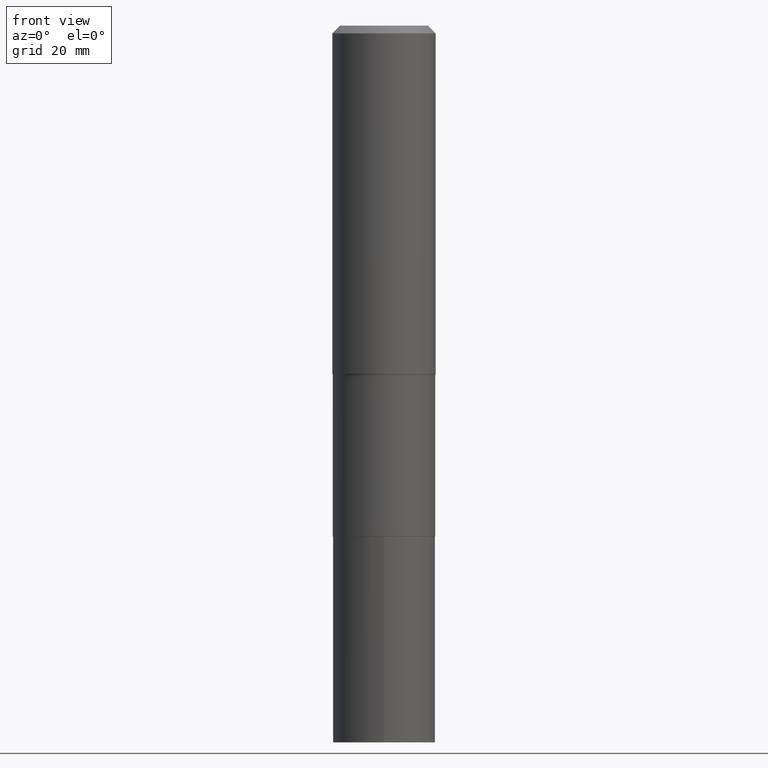
[diagram: clean part render]
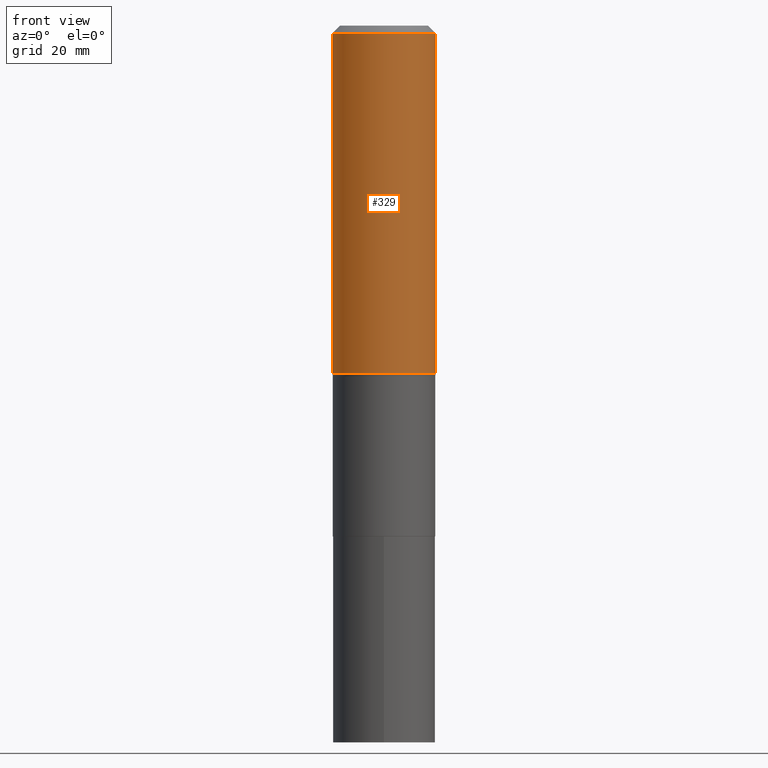
[diagram: same view with one face highlighted and labeled with its STEP entity id]
A machine part, front view. The second image highlights one B-rep face of the part: STEP entity #329.
In plain terms, the highlighted cylindrical surface (partial cylindrical patch) has radius 9.0005 mm, axis along (-0, 0, 1).
Its self-contained STEP definition (entity closure, byte-faithful):
#6 = AXIS2_PLACEMENT_3D ( 'NONE', #278, #455, #57 ) ;
#21 = CARTESIAN_POINT ( 'NONE',  ( 0.3543500000000002759, -1.081493330997731886E-14, -2.388820009532888644 ) ) ;
#54 = CARTESIAN_POINT ( 'NONE',  ( 0.3543500000000001648, -2.474412824838129483E-15, 1.727873240503290590E-29 ) ) ;
#57 = DIRECTION ( 'NONE',  ( 1.000000000000000000, -6.982962677686265922E-15, 0.000000000000000000 ) ) ;
#64 = DIRECTION ( 'NONE',  ( -2.445468806185136597E-29, 3.491481338843145583E-15, 1.000000000000000000 ) ) ;
#109 = EDGE_LOOP ( 'NONE', ( #465, #447, #191, #391 ) ) ;
#119 = CIRCLE ( 'NONE', #443, 0.3543499999999999983 ) ;
#136 = DIRECTION ( 'NONE',  ( 1.000000000000000000, -6.982962677686265922E-15, 4.876176775795935793E-29 ) ) ;
#148 = VERTEX_POINT ( 'NONE', #21 ) ;
#174 = VECTOR ( 'NONE', #381, 39.37007874015748143 ) ;
#179 = CYLINDRICAL_SURFACE ( 'NONE', #228, 0.3543500000000001648 ) ;
#183 = EDGE_CURVE ( 'NONE', #325, #148, #236, .T. ) ;
#187 = CARTESIAN_POINT ( 'NONE',  ( -0.3543499999999999983, -1.745242539335107473E-15, -0.05315250000000033143 ) ) ;
#191 = ORIENTED_EDGE ( 'NONE', *, *, #232, .T. ) ;
#228 = AXIS2_PLACEMENT_3D ( 'NONE', #284, #64, #136 ) ;
#232 = EDGE_CURVE ( 'NONE', #148, #389, #244, .T. ) ;
#236 = CIRCLE ( 'NONE', #6, 0.3543500000000002759 ) ;
#244 = LINE ( 'NONE', #54, #451 ) ;
#257 = EDGE_CURVE ( 'NONE', #466, #389, #119, .T. ) ;
#274 = DIRECTION ( 'NONE',  ( -2.445468806185136877E-29, 3.491481338843145188E-15, 1.000000000000000000 ) ) ;
#278 = CARTESIAN_POINT ( 'NONE',  ( 5.841784816903559502E-29, -8.340520485139185830E-15, -2.388820009532888644 ) ) ;
#279 = DIRECTION ( 'NONE',  ( 1.000000000000000000, -6.982962677686266711E-15, 0.000000000000000000 ) ) ;
#284 = CARTESIAN_POINT ( 'NONE',  ( 0.000000000000000000, 0.000000000000000000, 0.000000000000000000 ) ) ;
#303 = EDGE_CURVE ( 'NONE', #325, #466, #418, .T. ) ;
#305 = DIRECTION ( 'NONE',  ( -2.445468806185136597E-29, 3.491481338843145583E-15, 1.000000000000000000 ) ) ;
#325 = VERTEX_POINT ( 'NONE', #348 ) ;
#329 = ADVANCED_FACE ( 'NONE', ( #458 ), #179, .T. ) ;
#342 = CARTESIAN_POINT ( 'NONE',  ( -0.3543500000000001648, 2.517808184165916180E-15, -1.743024649231826627E-29 ) ) ;
#344 = CARTESIAN_POINT ( 'NONE',  ( 0.3543499999999999983, -2.659993786700990170E-15, -0.05315250000000033143 ) ) ;
#348 = CARTESIAN_POINT ( 'NONE',  ( -0.3543500000000002759, -5.822712300973268862E-15, -2.388820009532888644 ) ) ;
#379 = CARTESIAN_POINT ( 'NONE',  ( 1.299827807207562971E-30, -1.855809618628614763E-16, -0.05315250000000033143 ) ) ;
#381 = DIRECTION ( 'NONE',  ( -2.445468806185136877E-29, 3.491481338843145188E-15, 1.000000000000000000 ) ) ;
#389 = VERTEX_POINT ( 'NONE', #344 ) ;
#391 = ORIENTED_EDGE ( 'NONE', *, *, #257, .F. ) ;
#418 = LINE ( 'NONE', #342, #174 ) ;
#443 = AXIS2_PLACEMENT_3D ( 'NONE', #379, #305, #279 ) ;
#447 = ORIENTED_EDGE ( 'NONE', *, *, #183, .T. ) ;
#451 = VECTOR ( 'NONE', #274, 39.37007874015748143 ) ;
#455 = DIRECTION ( 'NONE',  ( -2.445468806185136597E-29, 3.491481338843145583E-15, 1.000000000000000000 ) ) ;
#458 = FACE_OUTER_BOUND ( 'NONE', #109, .T. ) ;
#465 = ORIENTED_EDGE ( 'NONE', *, *, #303, .F. ) ;
#466 = VERTEX_POINT ( 'NONE', #187 ) ;